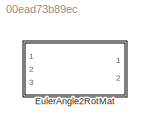
MODEL slx_00ead73b89ec
KIND library
CONFIG AbsTol = auto
CONFIG EnableMultiTasking = off
CONFIG FixedStep = auto
CONFIG MaxStep = auto
CONFIG MinStep = auto
CONFIG RelTol = 1e-3
CONFIG SampleTimeConstraint = Unconstrained
CONFIG Solver = VariableStepAuto
CONFIG SolverName = VariableStepAuto
CONFIG StartTime = 0.0
CONFIG StopTime = 10.0
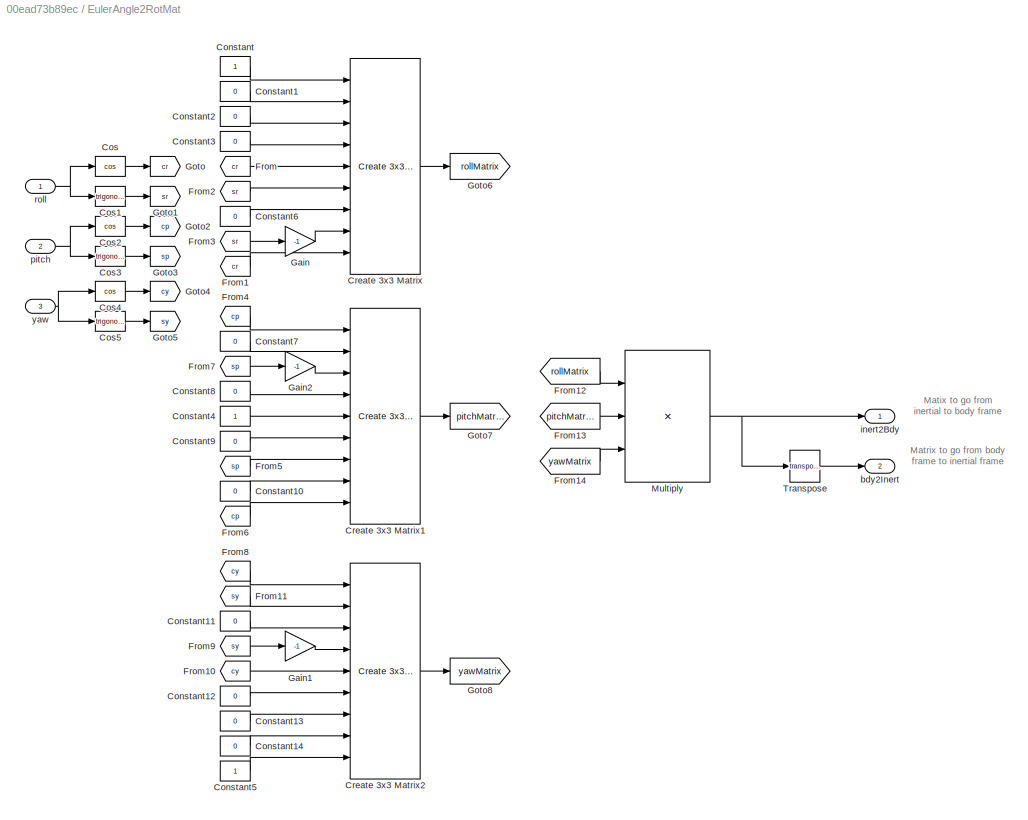
BLOCK [SubSystem] EulerAngle2RotMat
  Ports = [3, 2]
  RequestExecContextInheritance = off
BLOCK [Constant] EulerAngle2RotMat/Constant
BLOCK [Constant] EulerAngle2RotMat/Constant1
  Value = 0
BLOCK [Constant] EulerAngle2RotMat/Constant10
  Value = 0
BLOCK [Constant] EulerAngle2RotMat/Constant11
  Value = 0
BLOCK [Constant] EulerAngle2RotMat/Constant12
  Value = 0
BLOCK [Constant] EulerAngle2RotMat/Constant13
  Value = 0
BLOCK [Constant] EulerAngle2RotMat/Constant14
  Value = 0
BLOCK [Constant] EulerAngle2RotMat/Constant2
  Value = 0
BLOCK [Constant] EulerAngle2RotMat/Constant3
  Value = 0
BLOCK [Constant] EulerAngle2RotMat/Constant4
BLOCK [Constant] EulerAngle2RotMat/Constant5
BLOCK [Constant] EulerAngle2RotMat/Constant6
  Value = 0
BLOCK [Constant] EulerAngle2RotMat/Constant7
  Value = 0
BLOCK [Constant] EulerAngle2RotMat/Constant8
  Value = 0
BLOCK [Constant] EulerAngle2RotMat/Constant9
  Value = 0
BLOCK [Trigonometry] EulerAngle2RotMat/Cos
  Operator = cos
  Ports = [1, 1]
BLOCK [Trigonometry] EulerAngle2RotMat/Cos1
  Ports = [1, 1]
BLOCK [Trigonometry] EulerAngle2RotMat/Cos2
  Operator = cos
  Ports = [1, 1]
BLOCK [Trigonometry] EulerAngle2RotMat/Cos3
  Ports = [1, 1]
BLOCK [Trigonometry] EulerAngle2RotMat/Cos4
  Operator = cos
  Ports = [1, 1]
BLOCK [Trigonometry] EulerAngle2RotMat/Cos5
  Ports = [1, 1]
BLOCK [Reference] EulerAngle2RotMat/Create 3x3 Matrix  REF=sharedutil/Create 3x3 Matrix
  Ports = [9, 1]
  SourceBlock = sharedutil/Create 3x3 Matrix
  SourceProductBaseCode = AE
  SourceProductName = Aerospace Blockset
  SourceType = Create 3x3 Matrix
BLOCK [Reference] EulerAngle2RotMat/Create 3x3 Matrix1  REF=sharedutil/Create 3x3 Matrix
  Ports = [9, 1]
  SourceBlock = sharedutil/Create 3x3 Matrix
  SourceProductBaseCode = AE
  SourceProductName = Aerospace Blockset
  SourceType = Create 3x3 Matrix
BLOCK [Reference] EulerAngle2RotMat/Create 3x3 Matrix2  REF=sharedutil/Create 3x3 Matrix
  Ports = [9, 1]
  SourceBlock = sharedutil/Create 3x3 Matrix
  SourceProductBaseCode = AE
  SourceProductName = Aerospace Blockset
  SourceType = Create 3x3 Matrix
BLOCK [From] EulerAngle2RotMat/From
  GotoTag = cr
BLOCK [From] EulerAngle2RotMat/From1
  GotoTag = cr
BLOCK [From] EulerAngle2RotMat/From10
  GotoTag = cy
BLOCK [From] EulerAngle2RotMat/From11
  GotoTag = sy
BLOCK [From] EulerAngle2RotMat/From12
  GotoTag = rollMatrix
BLOCK [From] EulerAngle2RotMat/From13
  GotoTag = pitchMatrix
BLOCK [From] EulerAngle2RotMat/From14
  GotoTag = yawMatrix
BLOCK [From] EulerAngle2RotMat/From2
  GotoTag = sr
BLOCK [From] EulerAngle2RotMat/From3
  GotoTag = sr
BLOCK [From] EulerAngle2RotMat/From4
  GotoTag = cp
BLOCK [From] EulerAngle2RotMat/From5
  GotoTag = sp
BLOCK [From] EulerAngle2RotMat/From6
  GotoTag = cp
BLOCK [From] EulerAngle2RotMat/From7
  GotoTag = sp
BLOCK [From] EulerAngle2RotMat/From8
  GotoTag = cy
BLOCK [From] EulerAngle2RotMat/From9
  GotoTag = sy
BLOCK [Gain] EulerAngle2RotMat/Gain
  Gain = -1
  OutDataTypeStr = Inherit: Inherit via internal rule
  ParamDataTypeStr = Inherit: Inherit via internal rule
  SaturateOnIntegerOverflow = off
BLOCK [Gain] EulerAngle2RotMat/Gain1
  Gain = -1
  OutDataTypeStr = Inherit: Inherit via internal rule
  ParamDataTypeStr = Inherit: Inherit via internal rule
  SaturateOnIntegerOverflow = off
BLOCK [Gain] EulerAngle2RotMat/Gain2
  Gain = -1
  OutDataTypeStr = Inherit: Inherit via internal rule
  ParamDataTypeStr = Inherit: Inherit via internal rule
  SaturateOnIntegerOverflow = off
BLOCK [Goto] EulerAngle2RotMat/Goto
  GotoTag = cr
BLOCK [Goto] EulerAngle2RotMat/Goto1
  GotoTag = sr
BLOCK [Goto] EulerAngle2RotMat/Goto2
  GotoTag = cp
BLOCK [Goto] EulerAngle2RotMat/Goto3
  GotoTag = sp
BLOCK [Goto] EulerAngle2RotMat/Goto4
  GotoTag = cy
BLOCK [Goto] EulerAngle2RotMat/Goto5
  GotoTag = sy
BLOCK [Goto] EulerAngle2RotMat/Goto6
  GotoTag = rollMatrix
BLOCK [Goto] EulerAngle2RotMat/Goto7
  GotoTag = pitchMatrix
BLOCK [Goto] EulerAngle2RotMat/Goto8
  GotoTag = yawMatrix
BLOCK [Product] EulerAngle2RotMat/Multiply
  InputSameDT = off
  Inputs = 3
  Multiplication = Matrix(*)
  OutDataTypeStr = Inherit: Inherit via internal rule
  Ports = [3, 1]
  RndMeth = Floor
  SaturateOnIntegerOverflow = off
BLOCK [Math] EulerAngle2RotMat/Transpose
  Operator = transpose
  Ports = [1, 1]
BLOCK [Outport] EulerAngle2RotMat/bdy2Inert
  IconDisplay = Port number
  Port = 2
BLOCK [Outport] EulerAngle2RotMat/inert2Bdy
  IconDisplay = Port number
BLOCK [Inport] EulerAngle2RotMat/pitch
  IconDisplay = Port number
  Port = 2
BLOCK [Inport] EulerAngle2RotMat/roll
  IconDisplay = Port number
BLOCK [Inport] EulerAngle2RotMat/yaw
  IconDisplay = Port number
  Port = 3
ANNOTATION EulerAngle2RotMat: Matix to go from inertial to body frame
ANNOTATION EulerAngle2RotMat: Matrix to go from body frame to inertial frame
LINE EulerAngle2RotMat/Constant10:1 -> EulerAngle2RotMat/Create 3x3 Matrix1:8
LINE EulerAngle2RotMat/Constant11:1 -> EulerAngle2RotMat/Create 3x3 Matrix2:3
LINE EulerAngle2RotMat/Constant12:1 -> EulerAngle2RotMat/Create 3x3 Matrix2:6
LINE EulerAngle2RotMat/Constant13:1 -> EulerAngle2RotMat/Create 3x3 Matrix2:7
LINE EulerAngle2RotMat/Constant14:1 -> EulerAngle2RotMat/Create 3x3 Matrix2:8
LINE EulerAngle2RotMat/Constant1:1 -> EulerAngle2RotMat/Create 3x3 Matrix:2
LINE EulerAngle2RotMat/Constant2:1 -> EulerAngle2RotMat/Create 3x3 Matrix:3
LINE EulerAngle2RotMat/Constant3:1 -> EulerAngle2RotMat/Create 3x3 Matrix:4
LINE EulerAngle2RotMat/Constant4:1 -> EulerAngle2RotMat/Create 3x3 Matrix1:5
LINE EulerAngle2RotMat/Constant5:1 -> EulerAngle2RotMat/Create 3x3 Matrix2:9
LINE EulerAngle2RotMat/Constant6:1 -> EulerAngle2RotMat/Create 3x3 Matrix:7
LINE EulerAngle2RotMat/Constant7:1 -> EulerAngle2RotMat/Create 3x3 Matrix1:2
LINE EulerAngle2RotMat/Constant8:1 -> EulerAngle2RotMat/Create 3x3 Matrix1:4
LINE EulerAngle2RotMat/Constant9:1 -> EulerAngle2RotMat/Create 3x3 Matrix1:6
LINE EulerAngle2RotMat/Constant:1 -> EulerAngle2RotMat/Create 3x3 Matrix:1
LINE EulerAngle2RotMat/Cos1:1 -> EulerAngle2RotMat/Goto1:1
LINE EulerAngle2RotMat/Cos2:1 -> EulerAngle2RotMat/Goto2:1
LINE EulerAngle2RotMat/Cos3:1 -> EulerAngle2RotMat/Goto3:1
LINE EulerAngle2RotMat/Cos4:1 -> EulerAngle2RotMat/Goto4:1
LINE EulerAngle2RotMat/Cos5:1 -> EulerAngle2RotMat/Goto5:1
LINE EulerAngle2RotMat/Cos:1 -> EulerAngle2RotMat/Goto:1
LINE EulerAngle2RotMat/Create 3x3 Matrix1:1 -> EulerAngle2RotMat/Goto7:1
LINE EulerAngle2RotMat/Create 3x3 Matrix2:1 -> EulerAngle2RotMat/Goto8:1
LINE EulerAngle2RotMat/Create 3x3 Matrix:1 -> EulerAngle2RotMat/Goto6:1
LINE EulerAngle2RotMat/From10:1 -> EulerAngle2RotMat/Create 3x3 Matrix2:5
LINE EulerAngle2RotMat/From11:1 -> EulerAngle2RotMat/Create 3x3 Matrix2:2
LINE EulerAngle2RotMat/From12:1 -> EulerAngle2RotMat/Multiply:1
LINE EulerAngle2RotMat/From13:1 -> EulerAngle2RotMat/Multiply:2
LINE EulerAngle2RotMat/From14:1 -> EulerAngle2RotMat/Multiply:3
LINE EulerAngle2RotMat/From1:1 -> EulerAngle2RotMat/Create 3x3 Matrix:9
LINE EulerAngle2RotMat/From2:1 -> EulerAngle2RotMat/Create 3x3 Matrix:6
LINE EulerAngle2RotMat/From3:1 -> EulerAngle2RotMat/Gain:1
LINE EulerAngle2RotMat/From4:1 -> EulerAngle2RotMat/Create 3x3 Matrix1:1
LINE EulerAngle2RotMat/From5:1 -> EulerAngle2RotMat/Create 3x3 Matrix1:7
LINE EulerAngle2RotMat/From6:1 -> EulerAngle2RotMat/Create 3x3 Matrix1:9
LINE EulerAngle2RotMat/From7:1 -> EulerAngle2RotMat/Gain2:1
LINE EulerAngle2RotMat/From8:1 -> EulerAngle2RotMat/Create 3x3 Matrix2:1
LINE EulerAngle2RotMat/From9:1 -> EulerAngle2RotMat/Gain1:1
LINE EulerAngle2RotMat/From:1 -> EulerAngle2RotMat/Create 3x3 Matrix:5
LINE EulerAngle2RotMat/Gain1:1 -> EulerAngle2RotMat/Create 3x3 Matrix2:4
LINE EulerAngle2RotMat/Gain2:1 -> EulerAngle2RotMat/Create 3x3 Matrix1:3
LINE EulerAngle2RotMat/Gain:1 -> EulerAngle2RotMat/Create 3x3 Matrix:8
NET EulerAngle2RotMat/Multiply:1 -> EulerAngle2RotMat/Transpose:1, EulerAngle2RotMat/inert2Bdy:1
LINE EulerAngle2RotMat/Transpose:1 -> EulerAngle2RotMat/bdy2Inert:1
NET EulerAngle2RotMat/pitch:1 -> EulerAngle2RotMat/Cos2:1, EulerAngle2RotMat/Cos3:1
NET EulerAngle2RotMat/roll:1 -> EulerAngle2RotMat/Cos1:1, EulerAngle2RotMat/Cos:1
NET EulerAngle2RotMat/yaw:1 -> EulerAngle2RotMat/Cos4:1, EulerAngle2RotMat/Cos5:1
note: NET lines group one-source signal fan-out (src -> all destinations, sorted); 1:1 wires keep LINE
